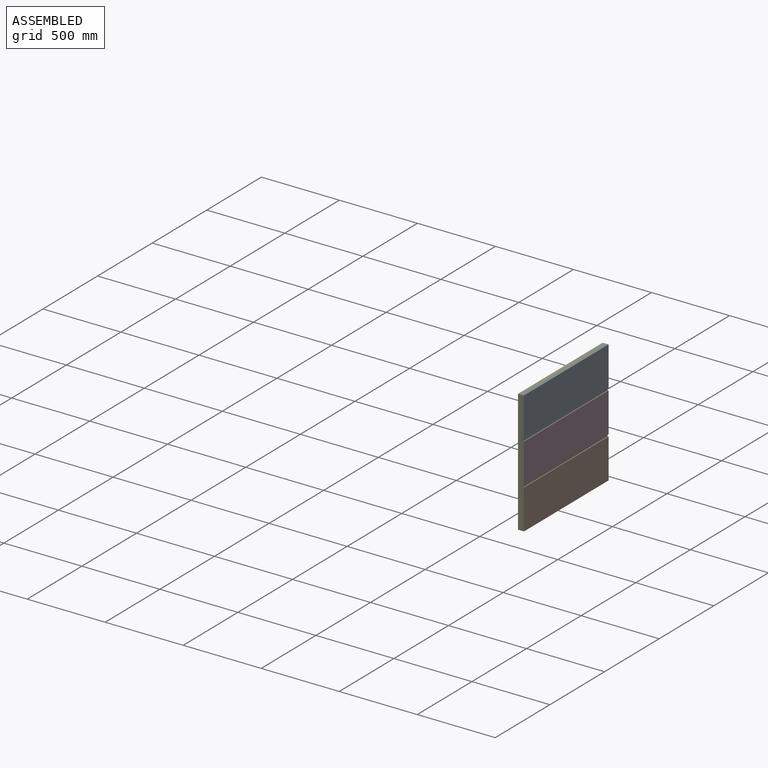
[diagram: assembled view]
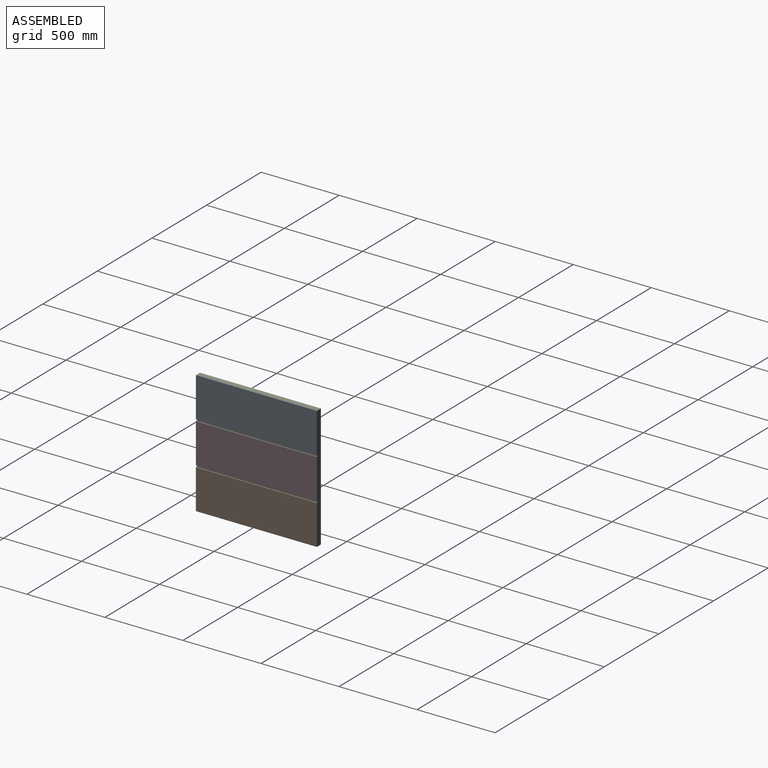
[diagram: assembled view, second angle]
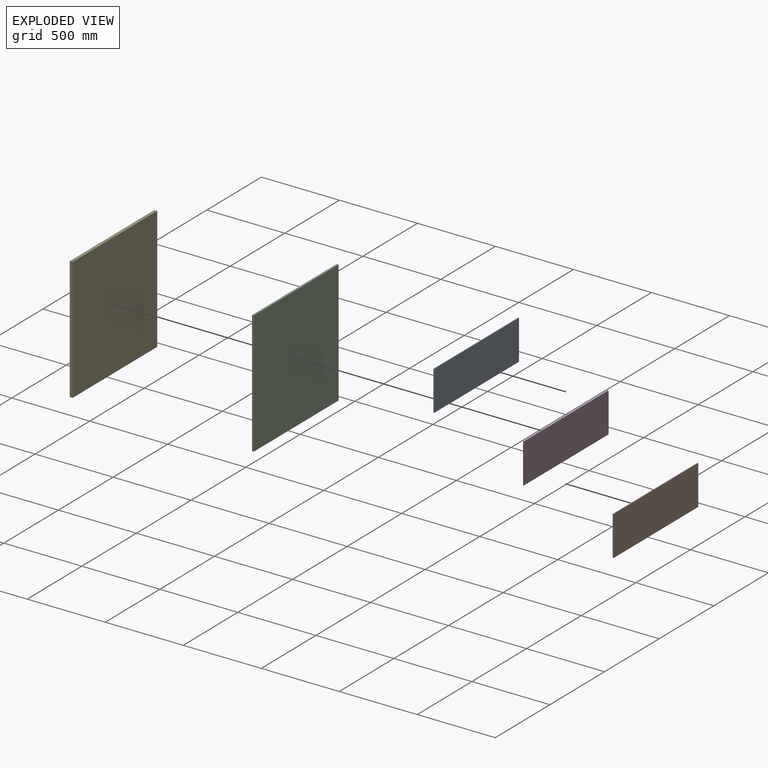
[diagram: exploded view]
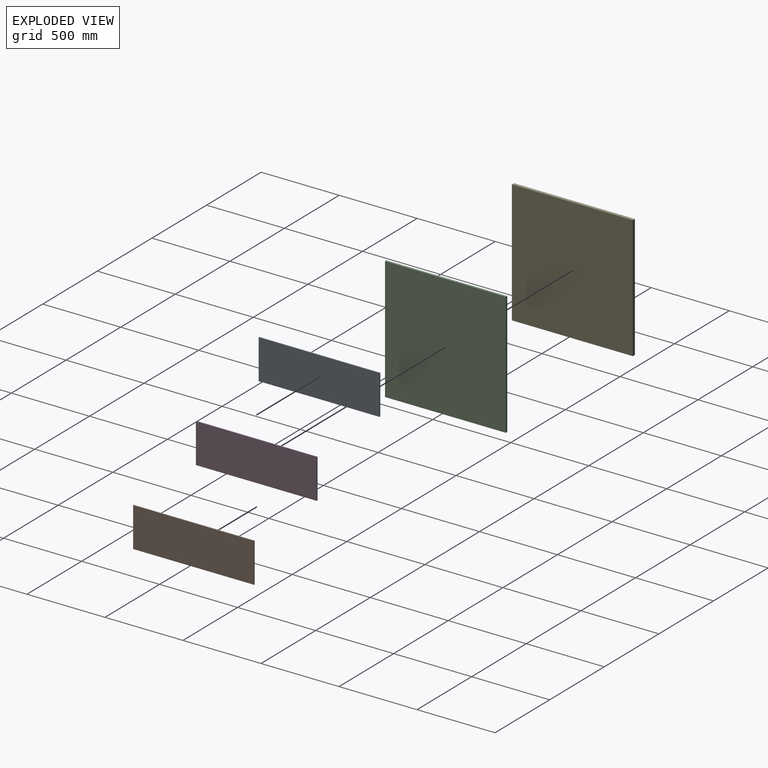
[diagram: exploded view, second angle]
ASSEMBLY  parts=5 mates=4
PART A: 6 faces, bbox 254x774.7x6.4 mm
  f0: plane 254x6.35mm, normal (0,1,0), area 1612.9mm2, adj f1,f3,f4,f5
  f1: plane 774.7x6.35mm, normal (-1,0,0), area 4919.3mm2, adj f0,f2,f4,f5
  f2: plane 254x6.35mm, normal (0,-1,0), area 1612.9mm2, adj f1,f3,f4,f5
  f3: plane 774.7x6.35mm, normal (1,0,0), area 4919.3mm2, adj f0,f2,f4,f5
  f4: plane 774.7x254mm, normal (0,0,1), area 196773.8mm2, adj f0,f1,f2,f3
  f5: plane 774.7x254mm, normal (0,0,-1), area 196773.8mm2, adj f0,f1,f2,f3
PART B: same geometry as A
PART C: 6 faces, bbox 787.4x774.7x12.7 mm
  f0: plane 787.4x12.7mm, normal (0,1,0), area 10000mm2, adj f1,f3,f4,f5
  f1: plane 774.7x12.7mm, normal (-1,0,0), area 9838.7mm2, adj f0,f2,f4,f5
  f2: plane 787.4x12.7mm, normal (0,-1,0), area 10000mm2, adj f1,f3,f4,f5
  f3: plane 774.7x12.7mm, normal (1,0,0), area 9838.7mm2, adj f0,f2,f4,f5
  f4: plane 787.4x774.7mm, normal (0,0,1), area 609998.8mm2, adj f0,f1,f2,f3
  f5: plane 787.4x774.7mm, normal (0,0,-1), area 609998.8mm2, adj f0,f1,f2,f3
PART D: same geometry as A
PART E: 6 faces, bbox 787.4x774.7x19.1 mm
  f0: plane 787.4x19.05mm, normal (0,1,0), area 15000mm2, adj f1,f3,f4,f5
  f1: plane 774.7x19.05mm, normal (-1,0,0), area 14758mm2, adj f0,f2,f4,f5
  f2: plane 787.4x19.05mm, normal (0,-1,0), area 15000mm2, adj f1,f3,f4,f5
  f3: plane 774.7x19.05mm, normal (1,0,0), area 14758mm2, adj f0,f2,f4,f5
  f4: plane 787.4x774.7mm, normal (0,0,1), area 609998.8mm2, adj f0,f1,f2,f3
  f5: plane 787.4x774.7mm, normal (0,0,-1), area 609998.8mm2, adj f0,f1,f2,f3
PLACE A rot(axis=(0,1,0),90deg) t=(-1331.32,796.67,-1341.76)mm
PLACE B rot(axis=(0,1,0),90deg) t=(-1331.32,796.67,-1875.16)mm
PLACE C rot(axis=(0.71,0,-0.71),180deg) t=(-1331.32,512.01,-1458.78)mm
PLACE D rot(axis=(0,1,0),90deg) t=(-1331.32,796.67,-1608.46)mm
PLACE E rot(axis=(0,1,0),90deg) t=(-1363.07,-220.9,-1404.76)mm
MATE fastened A.f4 <-> D.f4  axis (1,0,0) through (-1324.97,-844.67,381.36)mm
MATE fastened D.f4 <-> B.f4  axis (1,0,0) through (-1324.97,-844.67,114.66)mm
MATE fastened B.f5 <-> C.f5  axis (-1,0,0) through (-1331.32,-457.32,-152.04)mm
MATE fastened C.f4 <-> E.f4  axis (-1,0,0) through (-1344.02,-457.32,241.66)mm
